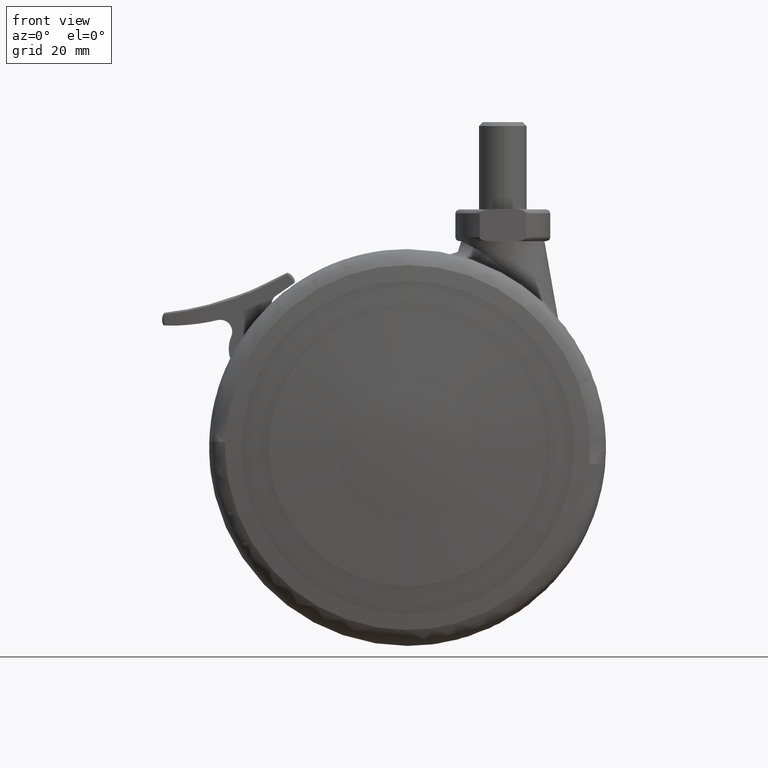
[diagram: clean part render]
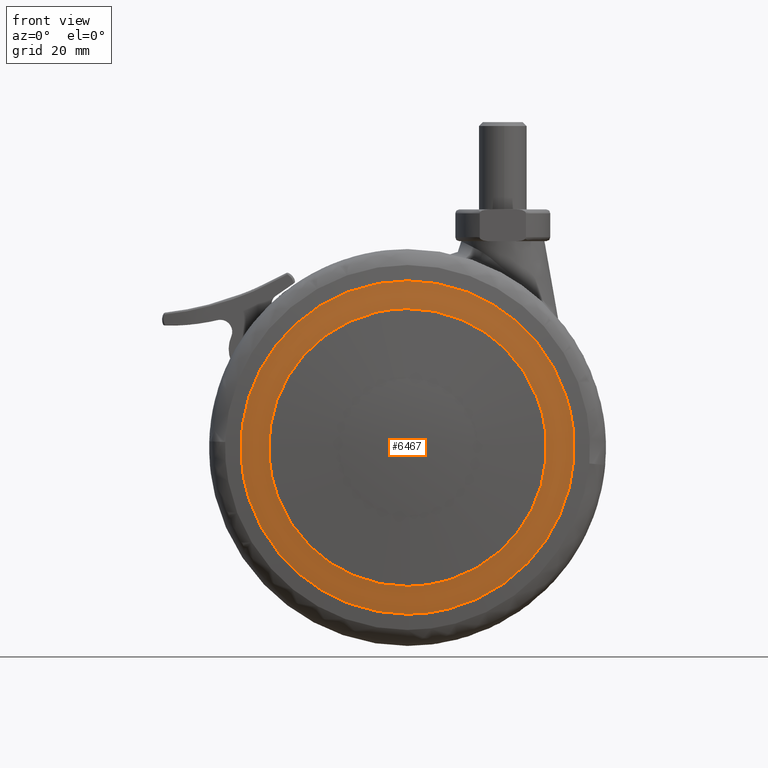
[diagram: same view with one face highlighted and labeled with its STEP entity id]
A machine part, front view. The second image highlights one B-rep face of the part: STEP entity #6467.
In plain terms, the highlighted face is a freeform B-spline surface patch.
Its self-contained STEP definition (entity closure, byte-faithful):
#5154=CARTESIAN_POINT('',(-34.934720154284733,-28.426129330010252,-2.136662757784329));
#5155=VERTEX_POINT('',#5154);
#5161=CARTESIAN_POINT('',(0.0,-28.426129330010252,-35.0));
#5162=VERTEX_POINT('',#5161);
#5163=CARTESIAN_POINT('',(0.0,-28.426129330010252,-35.0));
#5164=CARTESIAN_POINT('',(-32.924746452729771,-28.426129330010259,-34.999999999999993));
#5165=CARTESIAN_POINT('',(-34.934720154284733,-28.426129330010252,-2.136662757784329));
#5173=(BOUNDED_CURVE()B_SPLINE_CURVE(2,(#5163,#5164,#5165),.UNSPECIFIED.,.F.,.U.)B_SPLINE_CURVE_WITH_KNOTS((3,3),(0.500000000000000,0.739333140672350),.UNSPECIFIED.)CURVE()GEOMETRIC_REPRESENTATION_ITEM()RATIONAL_B_SPLINE_CURVE((1.0,0.719603784238970,0.976072424083774))REPRESENTATION_ITEM(''));
#5174=EDGE_CURVE('',#5162,#5155,#5173,.T.);
#5176=CARTESIAN_POINT('',(34.755336269401873,-28.426129330010252,4.131174264082503));
#5177=VERTEX_POINT('',#5176);
#5178=CARTESIAN_POINT('',(34.755336269401859,-28.426129330010252,4.131174264082503));
#5179=CARTESIAN_POINT('',(35.000000000000007,-28.426129330010248,2.072832086773691));
#5180=CARTESIAN_POINT('',(35.0,-28.426129330010252,0.0));
#5181=CARTESIAN_POINT('',(34.999999999999993,-28.426129330010248,-34.999999999999993));
#5182=CARTESIAN_POINT('',(0.0,-28.426129330010252,-35.0));
#5190=(BOUNDED_CURVE()B_SPLINE_CURVE(2,(#5178,#5179,#5180,#5181,#5182),.UNSPECIFIED.,.F.,.U.)B_SPLINE_CURVE_WITH_KNOTS((3,2,3),(0.229562589970944,0.250000000000000,0.500000000000000),.UNSPECIFIED.)CURVE()GEOMETRIC_REPRESENTATION_ITEM()RATIONAL_B_SPLINE_CURVE((0.956026982445166,0.976056084769518,1.0,0.707106781186548,1.0))REPRESENTATION_ITEM(''));
#5191=EDGE_CURVE('',#5177,#5162,#5190,.T.);
#5235=CARTESIAN_POINT('',(0.0,-28.426129330010252,35.0));
#5236=VERTEX_POINT('',#5235);
#5237=CARTESIAN_POINT('',(0.0,-28.426129330010252,35.0));
#5238=CARTESIAN_POINT('',(31.086129979642852,-28.426129330010255,35.0));
#5239=CARTESIAN_POINT('',(34.755336269401859,-28.426129330010252,4.131174264082503));
#5247=(BOUNDED_CURVE()B_SPLINE_CURVE(2,(#5237,#5238,#5239),.UNSPECIFIED.,.F.,.U.)B_SPLINE_CURVE_WITH_KNOTS((3,3),(0.0,0.229562589970944),.UNSPECIFIED.)CURVE()GEOMETRIC_REPRESENTATION_ITEM()RATIONAL_B_SPLINE_CURVE((1.0,0.731050696417030,0.956026982445166))REPRESENTATION_ITEM(''));
#5248=EDGE_CURVE('',#5236,#5177,#5247,.T.);
#5250=CARTESIAN_POINT('',(-34.934720154284733,-28.426129330010252,-2.136662757784329));
#5251=CARTESIAN_POINT('',(-35.0,-28.426129330010244,-1.069328601837405));
#5252=CARTESIAN_POINT('',(-35.0,-28.426129330010252,0.0));
#5253=CARTESIAN_POINT('',(-34.999999999999993,-28.426129330010248,34.999999999999993));
#5254=CARTESIAN_POINT('',(0.0,-28.426129330010252,35.0));
#5262=(BOUNDED_CURVE()B_SPLINE_CURVE(2,(#5250,#5251,#5252,#5253,#5254),.UNSPECIFIED.,.F.,.U.)B_SPLINE_CURVE_WITH_KNOTS((3,2,3),(0.739333140672350,0.750000000000000,1.0),.UNSPECIFIED.)CURVE()GEOMETRIC_REPRESENTATION_ITEM()RATIONAL_B_SPLINE_CURVE((0.976072424083774,0.987502996947577,1.0,0.707106781186548,1.0))REPRESENTATION_ITEM(''));
#5263=EDGE_CURVE('',#5155,#5236,#5262,.T.);
#5306=CARTESIAN_POINT('',(41.706404811223052,-27.795357728210810,4.957398281437719));
#5307=VERTEX_POINT('',#5306);
#5308=CARTESIAN_POINT('',(0.0,-27.795357728205751,-42.0));
#5309=VERTEX_POINT('',#5308);
#5310=CARTESIAN_POINT('',(41.706404811223052,-27.795357728210806,4.957398281437719));
#5311=CARTESIAN_POINT('',(42.0,-27.795357728205744,2.487393029123562));
#5312=CARTESIAN_POINT('',(42.0,-27.795357728205751,0.0));
#5313=CARTESIAN_POINT('',(41.999999999999993,-27.795357728205744,-41.999999999999993));
#5314=CARTESIAN_POINT('',(0.0,-27.795357728205751,-42.0));
#5322=(BOUNDED_CURVE()B_SPLINE_CURVE(2,(#5310,#5311,#5312,#5313,#5314),.UNSPECIFIED.,.F.,.U.)B_SPLINE_CURVE_WITH_KNOTS((3,2,3),(0.229562633878554,0.250000000000000,0.500000000000000),.UNSPECIFIED.)CURVE()GEOMETRIC_REPRESENTATION_ITEM()RATIONAL_B_SPLINE_CURVE((0.956027068505992,0.976056136210482,1.0,0.707106781186547,1.0))REPRESENTATION_ITEM(''));
#5323=EDGE_CURVE('',#5307,#5309,#5322,.T.);
#5325=CARTESIAN_POINT('',(-41.921662047373488,-27.795357728206302,-2.564030262250118));
#5326=VERTEX_POINT('',#5325);
#5327=CARTESIAN_POINT('',(0.0,-27.795357728205751,-42.0));
#5328=CARTESIAN_POINT('',(-39.509662739844345,-27.795357728205762,-41.999999999999986));
#5329=CARTESIAN_POINT('',(-41.921662047373488,-27.795357728206302,-2.564030262250119));
#5337=(BOUNDED_CURVE()B_SPLINE_CURVE(2,(#5327,#5328,#5329),.UNSPECIFIED.,.F.,.U.)B_SPLINE_CURVE_WITH_KNOTS((3,3),(0.500000000000000,0.739332996808463),.UNSPECIFIED.)CURVE()GEOMETRIC_REPRESENTATION_ITEM()RATIONAL_B_SPLINE_CURVE((1.0,0.719603952785998,0.976072115755791))REPRESENTATION_ITEM(''));
#5338=EDGE_CURVE('',#5309,#5326,#5337,.T.);
#5405=CARTESIAN_POINT('',(0.0,-27.795357728205751,42.0));
#5406=VERTEX_POINT('',#5405);
#5407=CARTESIAN_POINT('',(0.0,-27.795357728205751,42.0));
#5408=CARTESIAN_POINT('',(37.303365735330978,-27.795357728205751,42.000000000000007));
#5409=CARTESIAN_POINT('',(41.706404811223052,-27.795357728210806,4.957398281437719));
#5417=(BOUNDED_CURVE()B_SPLINE_CURVE(2,(#5407,#5408,#5409),.UNSPECIFIED.,.F.,.U.)B_SPLINE_CURVE_WITH_KNOTS((3,3),(0.0,0.229562633878554),.UNSPECIFIED.)CURVE()GEOMETRIC_REPRESENTATION_ITEM()RATIONAL_B_SPLINE_CURVE((1.0,0.731050644976065,0.956027068505992))REPRESENTATION_ITEM(''));
#5418=EDGE_CURVE('',#5406,#5307,#5417,.T.);
#5452=CARTESIAN_POINT('',(-41.921662047373488,-27.795357728206302,-2.564030262250119));
#5453=CARTESIAN_POINT('',(-41.999999999999993,-27.795357728205747,-1.283211847659975));
#5454=CARTESIAN_POINT('',(-42.0,-27.795357728205751,0.0));
#5455=CARTESIAN_POINT('',(-41.999999999999993,-27.795357728205744,41.999999999999993));
#5456=CARTESIAN_POINT('',(0.0,-27.795357728205751,42.0));
#5464=(BOUNDED_CURVE()B_SPLINE_CURVE(2,(#5452,#5453,#5454,#5455,#5456),.UNSPECIFIED.,.F.,.U.)B_SPLINE_CURVE_WITH_KNOTS((3,2,3),(0.739332996808463,0.750000000000000,1.0),.UNSPECIFIED.)CURVE()GEOMETRIC_REPRESENTATION_ITEM()RATIONAL_B_SPLINE_CURVE((0.976072115755791,0.987502828400549,1.0,0.707106781186547,1.0))REPRESENTATION_ITEM(''));
#5465=EDGE_CURVE('',#5326,#5406,#5464,.T.);
#6431=CARTESIAN_POINT('',(-46.037802844468189,-24.886849905385969,-46.038817852488400));
#6432=CARTESIAN_POINT('',(-23.085754491837452,-27.364279774409297,-46.172526939550870));
#6433=CARTESIAN_POINT('',(23.085883446941764,-27.364279774409297,-46.172526939550870));
#6434=CARTESIAN_POINT('',(46.038058518375998,-24.886822308025312,-46.038816363034357));
#6435=CARTESIAN_POINT('',(-46.171514896575104,-27.364389334043345,-23.086266426290731));
#6436=CARTESIAN_POINT('',(-23.152999984729110,-29.856251999999809,-23.153510445246852));
#6437=CARTESIAN_POINT('',(23.153129315461150,-29.856251999999809,-23.153510445246852));
#6438=CARTESIAN_POINT('',(46.171771308722960,-27.364361576142528,-23.086265677231463));
#6439=CARTESIAN_POINT('',(-46.171514896575104,-27.364389334043345,23.086270468871810));
#6440=CARTESIAN_POINT('',(-23.152999984729110,-29.856251999999809,23.153514499602871));
#6441=CARTESIAN_POINT('',(23.153129315461150,-29.856251999999809,23.153514499602871));
#6442=CARTESIAN_POINT('',(46.171771308722960,-27.364361576142528,23.086269719812410));
#6443=CARTESIAN_POINT('',(-46.037802797775790,-24.886849040226608,46.038825867542627));
#6444=CARTESIAN_POINT('',(-23.085754468355454,-27.364278904217326,46.172534977746977));
#6445=CARTESIAN_POINT('',(23.085883423459634,-27.364278904217326,46.172534977746977));
#6446=CARTESIAN_POINT('',(46.038058471683385,-24.886821442866033,46.038824378088364));
#6454=(BOUNDED_SURFACE()B_SPLINE_SURFACE(2,2,((#6431,#6435,#6439,#6443),(#6432,#6436,#6440,#6444),(#6433,#6437,#6441,#6445),(#6434,#6438,#6442,#6446)),.UNSPECIFIED.,.F.,.F.,.U.)B_SPLINE_SURFACE_WITH_KNOTS((3,1,3),(3,1,3),(146.491719017791810,191.612659318445710,236.733851660919210),(146.490724224090600,191.612659318445710,236.734602313995400),.UNSPECIFIED.)GEOMETRIC_REPRESENTATION_ITEM()RATIONAL_B_SPLINE_SURFACE(((1.005825584811162,1.002912728187159,1.002912728187159,1.005825585831289),(1.002912856624003,1.0,1.0,1.002912857644130),(1.002912856624003,1.0,1.0,1.002912857644130),(1.005825617351768,1.002912760727765,1.002912760727765,1.005825618371894)))REPRESENTATION_ITEM('')SURFACE());
#6455=ORIENTED_EDGE('',*,*,#5465,.F.);
#6456=ORIENTED_EDGE('',*,*,#5338,.F.);
#6457=ORIENTED_EDGE('',*,*,#5323,.F.);
#6458=ORIENTED_EDGE('',*,*,#5418,.F.);
#6459=EDGE_LOOP('',(#6455,#6456,#6457,#6458));
#6460=FACE_OUTER_BOUND('',#6459,.T.);
#6461=ORIENTED_EDGE('',*,*,#5174,.T.);
#6462=ORIENTED_EDGE('',*,*,#5263,.T.);
#6463=ORIENTED_EDGE('',*,*,#5248,.T.);
#6464=ORIENTED_EDGE('',*,*,#5191,.T.);
#6465=EDGE_LOOP('',(#6461,#6462,#6463,#6464));
#6466=FACE_BOUND('',#6465,.T.);
#6467=ADVANCED_FACE('',(#6460,#6466),#6454,.T.);